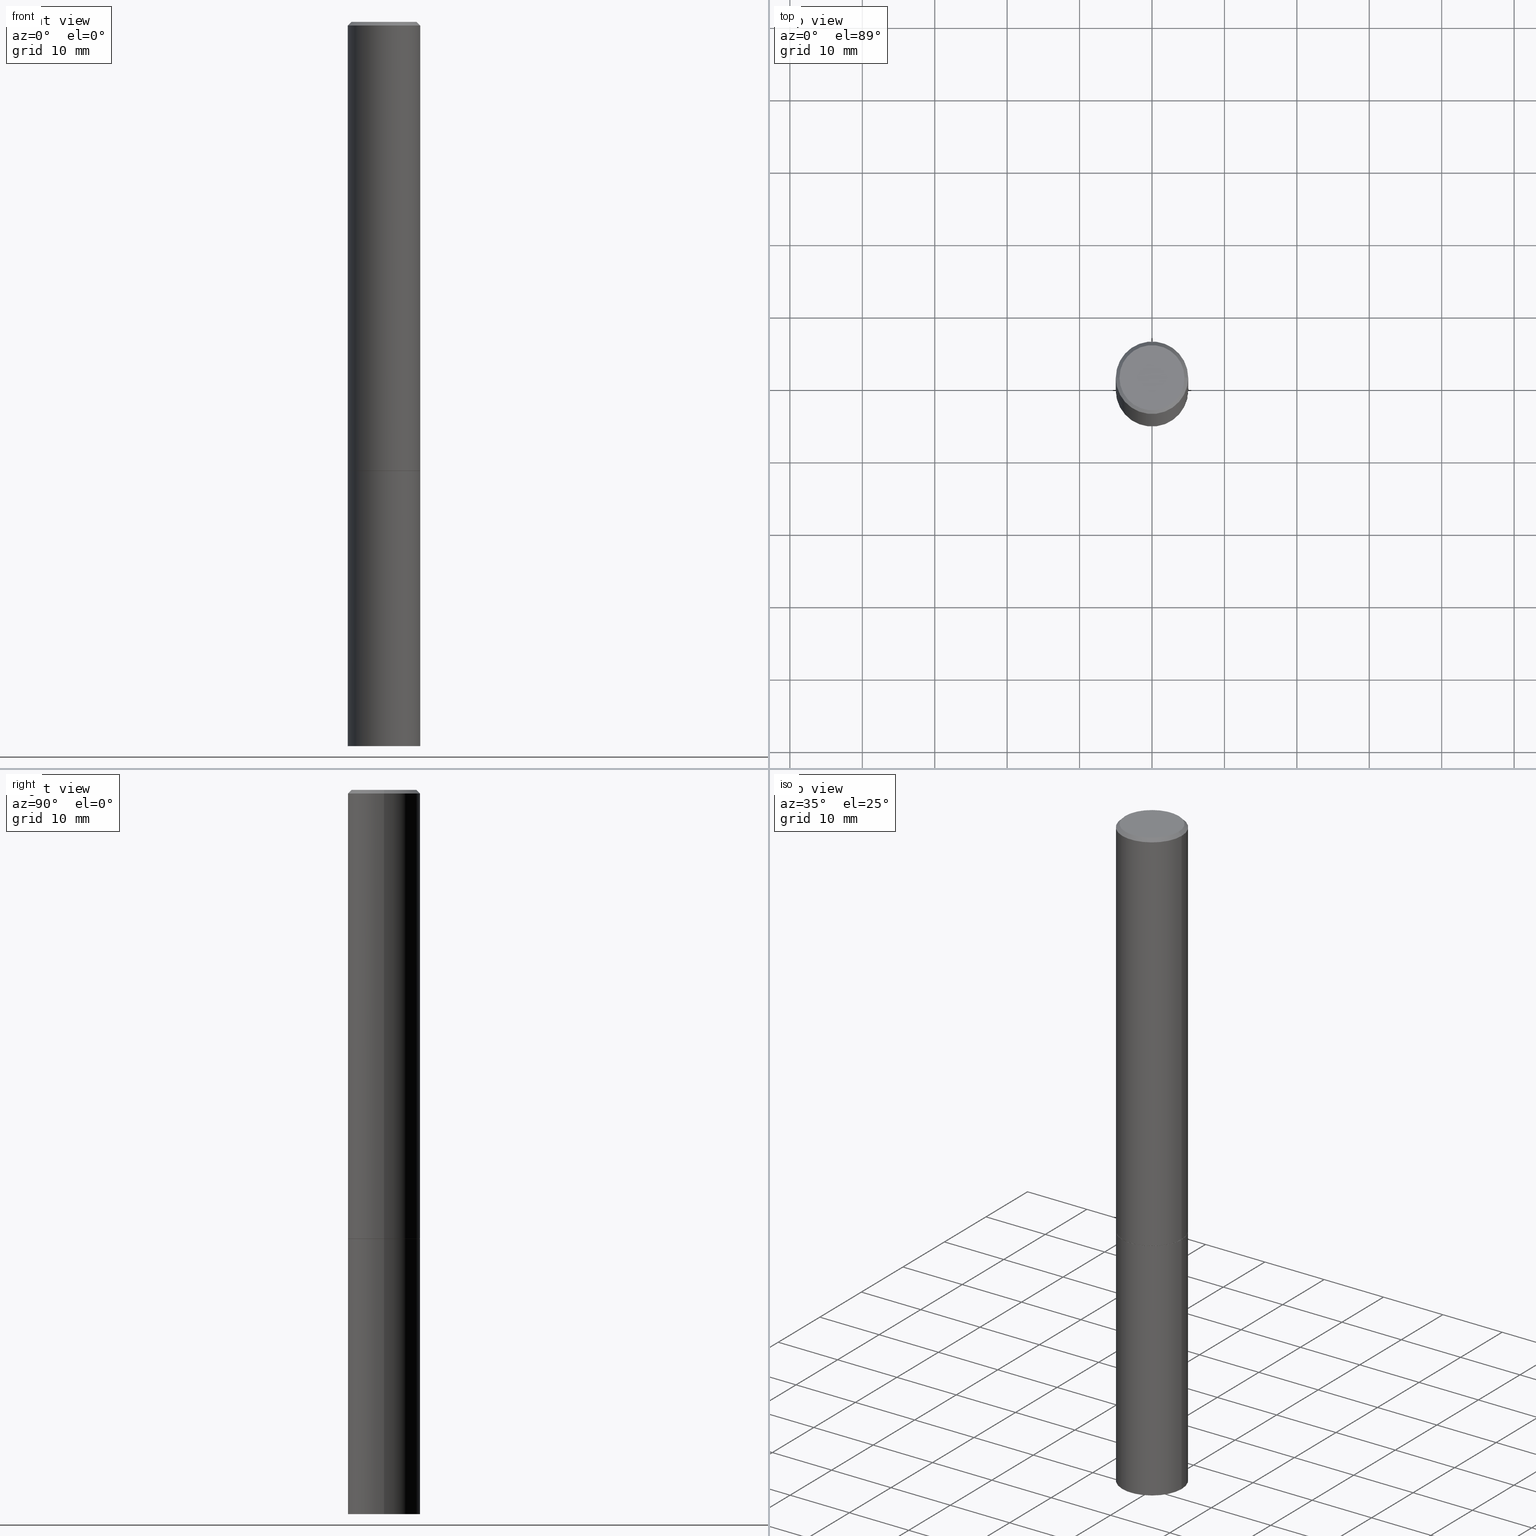
[diagram: canonical four-view strip — front | top / right | iso, engineering-drawing reading convention]
A machine part, canonical four-view strip (front | top / right | iso — engineering-drawing reading convention). The complete STEP part file that produces these views, byte-faithful:
ISO-10303-21;
HEADER;
FILE_DESCRIPTION (( 'STEP AP203' ),
    '1' );
FILE_NAME ('49432.STEP',
    '2024-02-28T20:42:53',
    ( '' ),
    ( '' ),
    'SwSTEP 2.0',
    'SolidWorks 2023',
    '' );
FILE_SCHEMA (( 'CONFIG_CONTROL_DESIGN' ));
ENDSEC;

DATA;
#1 = CIRCLE ( 'NONE', #333, 0.1968500000000000527 ) ;
#2 = CARTESIAN_POINT ( 'NONE',  ( 0.1768499999999996464, -1.316798864272039577E-15, 4.268512490109333727E-18 ) ) ;
#3 = ORIENTED_EDGE ( 'NONE', *, *, #309, .F. ) ;
#4 = PERSON_AND_ORGANIZATION_ROLE ( 'classification_officer' ) ;
#5 = AXIS2_PLACEMENT_3D ( 'NONE', #144, #346, #306 ) ;
#6 = LOCAL_TIME ( 15, 42, 53.00000000000000000, #35 ) ;
#7 = CARTESIAN_POINT ( 'NONE',  ( 0.000000000000000000, 0.000000000000000000, 0.000000000000000000 ) ) ;
#8 = EDGE_LOOP ( 'NONE', ( #321, #307, #114, #316 ) ) ;
#9 = CALENDAR_DATE ( 2024, 28, 2 ) ;
#10 = DIRECTION ( 'NONE',  ( 1.000000000000000000, -6.982962677686262766E-15, 0.000000000000000000 ) ) ;
#11 = EDGE_CURVE ( 'NONE', #57, #206, #218, .T. ) ;
#12 = CIRCLE ( 'NONE', #361, 0.1768499999999996464 ) ;
#13 = ORIENTED_EDGE ( 'NONE', *, *, #147, .F. ) ;
#14 = CC_DESIGN_PERSON_AND_ORGANIZATION_ASSIGNMENT ( #341, #111, ( #63 ) ) ;
#15 =( LENGTH_UNIT ( ) NAMED_UNIT ( * ) SI_UNIT ( $, .METRE. ) );
#16 = VERTEX_POINT ( 'NONE', #292 ) ;
#17 = PERSON_AND_ORGANIZATION ( #156, #137 ) ;
#18 = DIRECTION ( 'NONE',  ( -2.445468806185136597E-29, 3.491481338843145583E-15, 1.000000000000000000 ) ) ;
#19 = AXIS2_PLACEMENT_3D ( 'NONE', #27, #186, #252 ) ;
#20 = DIRECTION ( 'NONE',  ( 1.000000000000000000, -6.982962677686266711E-15, 0.000000000000000000 ) ) ;
#21 = ADVANCED_FACE ( 'NONE', ( #331 ), #241, .T. ) ;
#22 = CYLINDRICAL_SURFACE ( 'NONE', #123, 0.1968500000000000250 ) ;
#23 =( GEOMETRIC_REPRESENTATION_CONTEXT ( 3 ) GLOBAL_UNCERTAINTY_ASSIGNED_CONTEXT ( ( #352 ) ) GLOBAL_UNIT_ASSIGNED_CONTEXT ( ( #326, #68, #41 ) ) REPRESENTATION_CONTEXT ( 'NONE', 'WORKASPACE' ) );
#24 = CARTESIAN_POINT ( 'NONE',  ( -0.1968500000000000250, -9.735456040160091980E-15, -3.937000000000000277 ) ) ;
#25 = LINE ( 'NONE', #51, #287 ) ;
#26 = APPLICATION_CONTEXT ( 'configuration controlled 3d designs of mechanical parts and assemblies' ) ;
#27 = CARTESIAN_POINT ( 'NONE',  ( 5.966699340211114556E-29, -8.518865318643389958E-15, -2.439899999999999736 ) ) ;
#28 = ORIENTED_EDGE ( 'NONE', *, *, #366, .T. ) ;
#29 = AXIS2_PLACEMENT_3D ( 'NONE', #130, #363, #138 ) ;
#30 = CIRCLE ( 'NONE', #305, 0.1968499999999996364 ) ;
#31 = CARTESIAN_POINT ( 'NONE',  ( 5.969144809017300159E-29, -8.522356799982234543E-15, -2.440900000000000070 ) ) ;
#32 = PRODUCT_DEFINITION_SHAPE ( 'NONE', 'NONE',  #311 ) ;
#33 = PERSON_AND_ORGANIZATION_ROLE ( 'creator' ) ;
#34 = EDGE_CURVE ( 'NONE', #215, #131, #301, .T. ) ;
#35 = COORDINATED_UNIVERSAL_TIME_OFFSET ( 5, 0, .BEHIND. ) ;
#36 = AXIS2_PLACEMENT_3D ( 'NONE', #31, #170, #275 ) ;
#37 = EDGE_LOOP ( 'NONE', ( #176, #59, #13, #231 ) ) ;
#38 = DIRECTION ( 'NONE',  ( 1.000000000000000000, -6.982962677686262766E-15, 0.000000000000000000 ) ) ;
#39 = EDGE_CURVE ( 'NONE', #256, #57, #136, .T. ) ;
#40 = EDGE_LOOP ( 'NONE', ( #134, #347, #189, #364 ) ) ;
#41 =( NAMED_UNIT ( * ) SI_UNIT ( $, .STERADIAN. ) SOLID_ANGLE_UNIT ( ) );
#42 = ORIENTED_EDGE ( 'NONE', *, *, #269, .T. ) ;
#43 = MECHANICAL_CONTEXT ( 'NONE', #26, 'mechanical' ) ;
#44 = DIRECTION ( 'NONE',  ( -2.445468806185136877E-29, 3.491481338843145188E-15, 1.000000000000000000 ) ) ;
#45 = ADVANCED_FACE ( 'NONE', ( #328 ), #299, .T. ) ;
#46 = DIRECTION ( 'NONE',  ( -2.445468806185136597E-29, 3.491481338843145583E-15, 1.000000000000000000 ) ) ;
#47 = CARTESIAN_POINT ( 'NONE',  ( 0.000000000000000000, 0.000000000000000000, 0.000000000000000000 ) ) ;
#48 = ADVANCED_FACE ( 'NONE', ( #325 ), #160, .F. ) ;
#49 = AXIS2_PLACEMENT_3D ( 'NONE', #272, #234, #66 ) ;
#50 = DIRECTION ( 'NONE',  ( 1.000000000000000000, -6.982962677686266711E-15, 4.875932113059887537E-29 ) ) ;
#51 = CARTESIAN_POINT ( 'NONE',  ( -0.1968499999999996364, 1.304766576325675944E-15, -0.02000000000000002123 ) ) ;
#52 = CC_DESIGN_PERSON_AND_ORGANIZATION_ASSIGNMENT ( #17, #351, ( #110 ) ) ;
#53 = AXIS2_PLACEMENT_3D ( 'NONE', #332, #226, #74 ) ;
#54 = APPROVAL_PERSON_ORGANIZATION ( #342, #162, #314 ) ;
#55 = CALENDAR_DATE ( 2024, 28, 2 ) ;
#56 = FACE_OUTER_BOUND ( 'NONE', #120, .T. ) ;
#57 = VERTEX_POINT ( 'NONE', #24 ) ;
#58 = DIRECTION ( 'NONE',  ( 1.000000000000000000, -6.982962677686266711E-15, 4.876176775795935793E-29 ) ) ;
#59 = ORIENTED_EDGE ( 'NONE', *, *, #139, .T. ) ;
#60 = EDGE_LOOP ( 'NONE', ( #62, #350, #93, #86 ) ) ;
#61 = CIRCLE ( 'NONE', #167, 0.1768499999999996464 ) ;
#62 = ORIENTED_EDGE ( 'NONE', *, *, #139, .F. ) ;
#63 = PRODUCT_DEFINITION_FORMATION_WITH_SPECIFIED_SOURCE ( 'ANY', '', #110, .NOT_KNOWN. ) ;
#64 = EDGE_CURVE ( 'NONE', #256, #353, #69, .T. ) ;
#65 = COORDINATED_UNIVERSAL_TIME_OFFSET ( 5, 0, .BEHIND. ) ;
#66 = DIRECTION ( 'NONE',  ( -1.000000000000000000, 6.982962677686266711E-15, 0.000000000000000000 ) ) ;
#67 = ORIENTED_EDGE ( 'NONE', *, *, #147, .T. ) ;
#68 =( NAMED_UNIT ( * ) PLANE_ANGLE_UNIT ( ) SI_UNIT ( $, .RADIAN. ) );
#69 = LINE ( 'NONE', #270, #75 ) ;
#70 = CIRCLE ( 'NONE', #278, 0.1968499999999996364 ) ;
#71 = APPROVAL ( #151, 'UNSPECIFIED' ) ;
#72 = DIRECTION ( 'NONE',  ( 1.000000000000000000, -6.982962677686266711E-15, 4.876176775795935793E-29 ) ) ;
#73 = CARTESIAN_POINT ( 'NONE',  ( -0.1968499999999998307, 1.398703375343756013E-15, -9.682923725166775270E-30 ) ) ;
#74 = DIRECTION ( 'NONE',  ( -1.000000000000000000, 6.982962677686266711E-15, 0.000000000000000000 ) ) ;
#75 = VECTOR ( 'NONE', #295, 39.37007874015748143 ) ;
#76 = LOCAL_TIME ( 15, 42, 53.00000000000000000, #65 ) ;
#77 = CYLINDRICAL_SURFACE ( 'NONE', #181, 0.1968499999999998307 ) ;
#78 = DIRECTION ( 'NONE',  ( -1.000000000000000000, 6.982962677686265922E-15, -4.876176775795935793E-29 ) ) ;
#79 = DATE_TIME_ROLE ( 'classification_date' ) ;
#80 = ADVANCED_FACE ( 'NONE', ( #302 ), #100, .T. ) ;
#81 = COORDINATED_UNIVERSAL_TIME_OFFSET ( 5, 0, .BEHIND. ) ;
#82 = CC_DESIGN_APPROVAL ( #162, ( #273 ) ) ;
#83 = APPROVAL ( #280, 'UNSPECIFIED' ) ;
#84 = APPROVAL_DATE_TIME ( #345, #162 ) ;
#85 = CARTESIAN_POINT ( 'NONE',  ( 5.969144809017299038E-29, -8.522356799982232966E-15, -2.440900000000000070 ) ) ;
#86 = ORIENTED_EDGE ( 'NONE', *, *, #366, .F. ) ;
#87 = ADVANCED_FACE ( 'NONE', ( #240 ), #22, .T. ) ;
#88 = DIRECTION ( 'NONE',  ( -2.445468806185136597E-29, 3.491481338843145583E-15, 1.000000000000000000 ) ) ;
#89 = LOCAL_TIME ( 15, 42, 53.00000000000000000, #168 ) ;
#90 = EDGE_LOOP ( 'NONE', ( #289, #246, #349, #121 ) ) ;
#91 = MANIFOLD_SOLID_BREP ( 'Body-Move/Copy2[1]', #187 ) ;
#92 = APPLICATION_PROTOCOL_DEFINITION ( 'international standard', 'config_control_design', 1994, #116 ) ;
#93 = ORIENTED_EDGE ( 'NONE', *, *, #34, .T. ) ;
#94 = CARTESIAN_POINT ( 'NONE',  ( 1.374596203102637849E-15, 0.1968499999999862582, -3.937000000000000721 ) ) ;
#95 = DIRECTION ( 'NONE',  ( -2.445468806185136597E-29, 3.491481338843145583E-15, 1.000000000000000000 ) ) ;
#96 = EDGE_CURVE ( 'NONE', #16, #276, #317, .T. ) ;
#97 = CARTESIAN_POINT ( 'NONE',  ( 5.969144809017300159E-29, -8.522356799982234543E-15, -2.440900000000000070 ) ) ;
#98 = DIRECTION ( 'NONE',  ( 1.000000000000000000, -6.982962677686265922E-15, 4.876176775795935793E-29 ) ) ;
#99 = CARTESIAN_POINT ( 'NONE',  ( -0.1968500000000000250, 1.398703375343757393E-15, -9.682923725166783677E-30 ) ) ;
#100 = CONICAL_SURFACE ( 'NONE', #49, 0.1968499999999996364, 0.7853981633974473908 ) ;
#101 = DIRECTION ( 'NONE',  ( 2.438088387897960049E-29, -3.491481338843145188E-15, -1.000000000000000000 ) ) ;
#102 = ORIENTED_EDGE ( 'NONE', *, *, #229, .T. ) ;
#103 = CARTESIAN_POINT ( 'NONE',  ( 0.1958499999999999963, -9.889970040407088560E-15, -2.440900000000000070 ) ) ;
#104 = LINE ( 'NONE', #188, #128 ) ;
#105 = CC_DESIGN_PERSON_AND_ORGANIZATION_ASSIGNMENT ( #257, #169, ( #311 ) ) ;
#106 = AXIS2_PLACEMENT_3D ( 'NONE', #94, #101, #182 ) ;
#107 = CARTESIAN_POINT ( 'NONE',  ( 0.1968500000000000250, -9.896953003084774574E-15, -2.440900000000000070 ) ) ;
#108 = PERSON_AND_ORGANIZATION ( #156, #137 ) ;
#109 = APPROVAL_DATE_TIME ( #303, #71 ) ;
#110 = PRODUCT ( '49432', '49432', '', ( #43 ) ) ;
#111 = PERSON_AND_ORGANIZATION_ROLE ( 'design_supplier' ) ;
#112 = CARTESIAN_POINT ( 'NONE',  ( -0.1958499999999999963, -7.125460397647855362E-15, -2.440900000000000070 ) ) ;
#113 = DIMENSIONAL_EXPONENTS ( 1.000000000000000000, 0.000000000000000000, 0.000000000000000000, 0.000000000000000000, 0.000000000000000000, 0.000000000000000000, 0.000000000000000000 ) ;
#114 = ORIENTED_EDGE ( 'NONE', *, *, #159, .F. ) ;
#115 = LINE ( 'NONE', #103, #329 ) ;
#116 = APPLICATION_CONTEXT ( 'configuration controlled 3d designs of mechanical parts and assemblies' ) ;
#117 = ORIENTED_EDGE ( 'NONE', *, *, #129, .F. ) ;
#118 = AXIS2_PLACEMENT_3D ( 'NONE', #358, #158, #212 ) ;
#119 = EDGE_LOOP ( 'NONE', ( #199, #233, #67, #344 ) ) ;
#120 = EDGE_LOOP ( 'NONE', ( #174, #102 ) ) ;
#121 = ORIENTED_EDGE ( 'NONE', *, *, #64, .F. ) ;
#122 = DIRECTION ( 'NONE',  ( -2.445468806185136597E-29, 3.491481338843145583E-15, 1.000000000000000000 ) ) ;
#123 = AXIS2_PLACEMENT_3D ( 'NONE', #127, #298, #357 ) ;
#124 = CC_DESIGN_SECURITY_CLASSIFICATION ( #273, ( #63 ) ) ;
#125 = FACE_OUTER_BOUND ( 'NONE', #209, .T. ) ;
#126 = ORIENTED_EDGE ( 'NONE', *, *, #39, .F. ) ;
#127 = CARTESIAN_POINT ( 'NONE',  ( 0.000000000000000000, 0.000000000000000000, 0.000000000000000000 ) ) ;
#128 = VECTOR ( 'NONE', #133, 39.37007874015748143 ) ;
#129 = EDGE_CURVE ( 'NONE', #276, #205, #177, .T. ) ;
#130 = CARTESIAN_POINT ( 'NONE',  ( 5.969144809017299038E-29, -8.522356799982232966E-15, -2.440900000000000070 ) ) ;
#131 = VERTEX_POINT ( 'NONE', #330 ) ;
#132 = CARTESIAN_POINT ( 'NONE',  ( 0.1968500000000000250, -1.512055823412800660E-14, -3.937000000000000277 ) ) ;
#133 = DIRECTION ( 'NONE',  ( 0.7071067811865469066, -7.319954787623254468E-15, -0.7071067811865481278 ) ) ;
#134 = ORIENTED_EDGE ( 'NONE', *, *, #11, .F. ) ;
#135 = ADVANCED_FACE ( 'NONE', ( #152 ), #291, .T. ) ;
#136 = CIRCLE ( 'NONE', #118, 0.1968500000000000250 ) ;
#137 = ORGANIZATION ( 'UNSPECIFIED', 'UNSPECIFIED', '' ) ;
#138 = DIRECTION ( 'NONE',  ( 1.000000000000000000, -6.982962677686262766E-15, 0.000000000000000000 ) ) ;
#139 = EDGE_CURVE ( 'NONE', #205, #146, #266, .T. ) ;
#140 = DATE_AND_TIME ( #143, #297 ) ;
#141 = CLOSED_SHELL ( 'NONE', ( #204, #21, #80, #286, #173, #165, #264, #213 ) ) ;
#142 = APPROVAL_PERSON_ORGANIZATION ( #207, #71, #323 ) ;
#143 = CALENDAR_DATE ( 2024, 28, 2 ) ;
#144 = CARTESIAN_POINT ( 'NONE',  ( 9.627810689950883669E-29, -1.374596203102546341E-14, -3.937000000000000277 ) ) ;
#145 = EDGE_LOOP ( 'NONE', ( #126, #285 ) ) ;
#146 = VERTEX_POINT ( 'NONE', #184 ) ;
#147 = EDGE_CURVE ( 'NONE', #131, #146, #70, .T. ) ;
#148 = ORIENTED_EDGE ( 'NONE', *, *, #300, .T. ) ;
#149 = ORIENTED_EDGE ( 'NONE', *, *, #320, .T. ) ;
#150 = CARTESIAN_POINT ( 'NONE',  ( 4.890937612370278413E-31, -6.982962677686297772E-17, -0.02000000000000002123 ) ) ;
#151 = APPROVAL_STATUS ( 'not_yet_approved' ) ;
#152 = FACE_OUTER_BOUND ( 'NONE', #145, .T. ) ;
#153 = VECTOR ( 'NONE', #242, 39.37007874015748143 ) ;
#154 = DIRECTION ( 'NONE',  ( -2.445468806185136877E-29, 3.491481338843145188E-15, 1.000000000000000000 ) ) ;
#155 = DIRECTION ( 'NONE',  ( 1.000000000000000000, -6.982962677686262766E-15, 0.000000000000000000 ) ) ;
#156 = PERSON ( 'UNSPECIFIED', 'UNSPECIFIED', 'UNSPECIFIED', ('UNSPECIFIED'), ('UNSPECIFIED'), ('UNSPECIFIED') ) ;
#157 = DIRECTION ( 'NONE',  ( -2.445468806185136597E-29, 3.491481338843145583E-15, 1.000000000000000000 ) ) ;
#158 = DIRECTION ( 'NONE',  ( -2.445468806185136597E-29, 3.491481338843145583E-15, 1.000000000000000000 ) ) ;
#159 = EDGE_CURVE ( 'NONE', #215, #205, #1, .T. ) ;
#160 = PLANE ( 'NONE',  #221 ) ;
#161 = AXIS2_PLACEMENT_3D ( 'NONE', #47, #157, #98 ) ;
#162 = APPROVAL ( #197, 'UNSPECIFIED' ) ;
#163 = CARTESIAN_POINT ( 'NONE',  ( 5.969144809017300159E-29, -8.522356799982234543E-15, -2.440900000000000070 ) ) ;
#164 = CARTESIAN_POINT ( 'NONE',  ( 5.969144809017300159E-29, -8.522356799982234543E-15, -2.440900000000000070 ) ) ;
#165 = ADVANCED_FACE ( 'NONE', ( #125 ), #201, .T. ) ;
#166 = DIRECTION ( 'NONE',  ( -2.445468806185136597E-29, 3.491481338843145583E-15, 1.000000000000000000 ) ) ;
#167 = AXIS2_PLACEMENT_3D ( 'NONE', #220, #334, #50 ) ;
#168 = COORDINATED_UNIVERSAL_TIME_OFFSET ( 5, 0, .BEHIND. ) ;
#169 = PERSON_AND_ORGANIZATION_ROLE ( 'creator' ) ;
#170 = DIRECTION ( 'NONE',  ( -2.438088387897960049E-29, 3.491481338843145188E-15, 1.000000000000000000 ) ) ;
#171 = AXIS2_PLACEMENT_3D ( 'NONE', #244, #18, #359 ) ;
#172 = DIRECTION ( 'NONE',  ( 1.000000000000000000, -6.982962677686262766E-15, 0.000000000000000000 ) ) ;
#173 = ADVANCED_FACE ( 'NONE', ( #308 ), #77, .T. ) ;
#174 = ORIENTED_EDGE ( 'NONE', *, *, #260, .T. ) ;
#175 = AXIS2_PLACEMENT_3D ( 'NONE', #85, #343, #10 ) ;
#176 = ORIENTED_EDGE ( 'NONE', *, *, #159, .T. ) ;
#177 = LINE ( 'NONE', #362, #153 ) ;
#178 = DIRECTION ( 'NONE',  ( -2.445468806185136877E-29, 3.491481338843145188E-15, 1.000000000000000000 ) ) ;
#179 = DIRECTION ( 'NONE',  ( 0.000000000000000000, 0.000000000000000000, 1.000000000000000000 ) ) ;
#180 = CARTESIAN_POINT ( 'NONE',  ( 0.1968499999999998307, -1.374596203102540425E-15, 9.598753983154291049E-30 ) ) ;
#181 = AXIS2_PLACEMENT_3D ( 'NONE', #7, #166, #58 ) ;
#182 = DIRECTION ( 'NONE',  ( -1.000000000000000000, 6.982962677686265922E-15, -4.876176775795935793E-29 ) ) ;
#183 = DIRECTION ( 'NONE',  ( 2.438088387897960049E-29, -3.491481338843145188E-15, -1.000000000000000000 ) ) ;
#184 = CARTESIAN_POINT ( 'NONE',  ( -0.1968499999999996364, 1.304766576325675944E-15, -0.02000000000000002123 ) ) ;
#185 = PRODUCT_RELATED_PRODUCT_CATEGORY ( 'detail', '', ( #110 ) ) ;
#186 = DIRECTION ( 'NONE',  ( -2.445468806185136597E-29, 3.491481338843145583E-15, 1.000000000000000000 ) ) ;
#187 = CLOSED_SHELL ( 'NONE', ( #45, #135, #48, #87 ) ) ;
#188 = CARTESIAN_POINT ( 'NONE',  ( 0.1968499999999996364, -1.420318657638186558E-15, -0.02000000000000002123 ) ) ;
#189 = ORIENTED_EDGE ( 'NONE', *, *, #64, .T. ) ;
#190 = CARTESIAN_POINT ( 'NONE',  ( -1.043851414335219820E-46, 1.490343170380447200E-32, 4.268512490100411279E-18 ) ) ;
#191 = SHAPE_DEFINITION_REPRESENTATION ( #32, #195 ) ;
#192 = CC_DESIGN_DATE_AND_TIME_ASSIGNMENT ( #279, #79, ( #273 ) ) ;
#193 = PERSON_AND_ORGANIZATION ( #156, #137 ) ;
#194 = CIRCLE ( 'NONE', #19, 0.1968500000000000527 ) ;
#195 = ADVANCED_BREP_SHAPE_REPRESENTATION ( '49432', ( #91, #219, #340 ), #23 ) ;
#196 = EDGE_CURVE ( 'NONE', #206, #353, #312, .T. ) ;
#197 = APPROVAL_STATUS ( 'not_yet_approved' ) ;
#198 = CARTESIAN_POINT ( 'NONE',  ( 4.890937612370278413E-31, -6.982962677686297772E-17, -0.02000000000000002123 ) ) ;
#199 = ORIENTED_EDGE ( 'NONE', *, *, #229, .F. ) ;
#200 = CARTESIAN_POINT ( 'NONE',  ( -0.1968500000000000527, -2.895644097366364896E-15, -2.439899999999999736 ) ) ;
#201 = CONICAL_SURFACE ( 'NONE', #354, 0.1958499999999999963, 0.7853981633972946241 ) ;
#202 = EDGE_CURVE ( 'NONE', #16, #215, #115, .T. ) ;
#203 = VERTEX_POINT ( 'NONE', #222 ) ;
#204 = ADVANCED_FACE ( 'NONE', ( #284 ), #250, .T. ) ;
#205 = VERTEX_POINT ( 'NONE', #200 ) ;
#206 = VERTEX_POINT ( 'NONE', #304 ) ;
#207 = PERSON_AND_ORGANIZATION ( #156, #137 ) ;
#208 = APPROVAL_PERSON_ORGANIZATION ( #193, #83, #337 ) ;
#209 = EDGE_LOOP ( 'NONE', ( #117, #42, #239, #251 ) ) ;
#210 = LENGTH_MEASURE_WITH_UNIT ( LENGTH_MEASURE( 0.02539999999999999897 ), #15 );
#211 = CARTESIAN_POINT ( 'NONE',  ( 5.966699340211114556E-29, -8.518865318643389958E-15, -2.439899999999999736 ) ) ;
#212 = DIRECTION ( 'NONE',  ( 1.000000000000000000, -6.982962677686267499E-15, 0.000000000000000000 ) ) ;
#213 = ADVANCED_FACE ( 'NONE', ( #56 ), #277, .F. ) ;
#214 = CIRCLE ( 'NONE', #243, 0.1958499999999999963 ) ;
#215 = VERTEX_POINT ( 'NONE', #248 ) ;
#216 = ORIENTED_EDGE ( 'NONE', *, *, #96, .F. ) ;
#217 = DIRECTION ( 'NONE',  ( 1.000000000000000000, -6.982962677686266711E-15, 4.875932113059887537E-29 ) ) ;
#218 = LINE ( 'NONE', #99, #281 ) ;
#219 = MANIFOLD_SOLID_BREP ( 'Body-Move/Copy2[2]', #141 ) ;
#220 = CARTESIAN_POINT ( 'NONE',  ( -1.043851414335219820E-46, 1.490343170380447200E-32, 4.268512490100411279E-18 ) ) ;
#221 = AXIS2_PLACEMENT_3D ( 'NONE', #355, #183, #327 ) ;
#222 = CARTESIAN_POINT ( 'NONE',  ( -0.1768499999999996464, 1.269851762937245083E-15, 4.268512490091652920E-18 ) ) ;
#223 = COORDINATED_UNIVERSAL_TIME_OFFSET ( 5, 0, .BEHIND. ) ;
#224 = PERSON_AND_ORGANIZATION ( #156, #137 ) ;
#225 = CIRCLE ( 'NONE', #5, 0.1968500000000000250 ) ;
#226 = DIRECTION ( 'NONE',  ( 2.445468806185136597E-29, -3.491481338843145583E-15, -1.000000000000000000 ) ) ;
#227 = ORIENTED_EDGE ( 'NONE', *, *, #260, .F. ) ;
#228 = DATE_TIME_ROLE ( 'creation_date' ) ;
#229 = EDGE_CURVE ( 'NONE', #319, #203, #61, .T. ) ;
#230 = FACE_OUTER_BOUND ( 'NONE', #360, .T. ) ;
#231 = ORIENTED_EDGE ( 'NONE', *, *, #34, .F. ) ;
#232 = AXIS2_PLACEMENT_3D ( 'NONE', #245, #336, #78 ) ;
#233 = ORIENTED_EDGE ( 'NONE', *, *, #309, .T. ) ;
#234 = DIRECTION ( 'NONE',  ( 2.445468806185136597E-29, -3.491481338843145583E-15, -1.000000000000000000 ) ) ;
#235 = CONICAL_SURFACE ( 'NONE', #53, 0.1968499999999996364, 0.7853981633974473908 ) ;
#236 = CC_DESIGN_APPROVAL ( #71, ( #311 ) ) ;
#237 = DIRECTION ( 'NONE',  ( 1.000000000000000000, -6.982962677686266711E-15, 0.000000000000000000 ) ) ;
#238 = CC_DESIGN_DATE_AND_TIME_ASSIGNMENT ( #140, #228, ( #311 ) ) ;
#239 = ORIENTED_EDGE ( 'NONE', *, *, #202, .T. ) ;
#240 = FACE_OUTER_BOUND ( 'NONE', #40, .T. ) ;
#241 = CYLINDRICAL_SURFACE ( 'NONE', #255, 0.1968499999999998307 ) ;
#242 = DIRECTION ( 'NONE',  ( -0.7071067811864388819, 7.493145998869961307E-15, 0.7071067811866561525 ) ) ;
#243 = AXIS2_PLACEMENT_3D ( 'NONE', #163, #283, #38 ) ;
#244 = CARTESIAN_POINT ( 'NONE',  ( 5.969144809017300159E-29, -8.522356799982234543E-15, -2.440900000000000070 ) ) ;
#245 = CARTESIAN_POINT ( 'NONE',  ( 1.234936949548813631E-15, 0.1768499999999996464, -6.153342185293588703E-16 ) ) ;
#246 = ORIENTED_EDGE ( 'NONE', *, *, #11, .T. ) ;
#247 = DIRECTION ( 'NONE',  ( -0.7071067811865469066, 2.468850131082250355E-15, -0.7071067811865481278 ) ) ;
#248 = CARTESIAN_POINT ( 'NONE',  ( 0.1968500000000000527, -9.893461521745931567E-15, -2.439899999999999736 ) ) ;
#249 = AXIS2_PLACEMENT_3D ( 'NONE', #164, #274, #172 ) ;
#250 = CONICAL_SURFACE ( 'NONE', #249, 0.1958499999999999963, 0.7853981633972946241 ) ;
#251 = ORIENTED_EDGE ( 'NONE', *, *, #294, .F. ) ;
#252 = DIRECTION ( 'NONE',  ( 1.000000000000000000, -6.982962677686266711E-15, 0.000000000000000000 ) ) ;
#253 = SECURITY_CLASSIFICATION_LEVEL ( 'unclassified' ) ;
#254 = APPROVAL_DATE_TIME ( #313, #83 ) ;
#255 = AXIS2_PLACEMENT_3D ( 'NONE', #356, #95, #72 ) ;
#256 = VERTEX_POINT ( 'NONE', #132 ) ;
#257 = PERSON_AND_ORGANIZATION ( #156, #137 ) ;
#258 = DIRECTION ( 'NONE',  ( -2.445468806185136597E-29, 3.491481338843145583E-15, 1.000000000000000000 ) ) ;
#259 = EDGE_LOOP ( 'NONE', ( #3, #227, #148, #28 ) ) ;
#260 = EDGE_CURVE ( 'NONE', #203, #319, #12, .T. ) ;
#261 = EDGE_LOOP ( 'NONE', ( #149, #265 ) ) ;
#262 = DIRECTION ( 'NONE',  ( 1.000000000000000000, -6.982962677686266711E-15, 0.000000000000000000 ) ) ;
#263 = ORIENTED_EDGE ( 'NONE', *, *, #269, .F. ) ;
#264 = ADVANCED_FACE ( 'NONE', ( #230 ), #318, .F. ) ;
#265 = ORIENTED_EDGE ( 'NONE', *, *, #196, .T. ) ;
#266 = LINE ( 'NONE', #73, #271 ) ;
#267 = CALENDAR_DATE ( 2024, 28, 2 ) ;
#268 = DIRECTION ( 'NONE',  ( -2.445468806185136597E-29, 3.491481338843145583E-15, 1.000000000000000000 ) ) ;
#269 = EDGE_CURVE ( 'NONE', #276, #16, #214, .T. ) ;
#270 = CARTESIAN_POINT ( 'NONE',  ( 0.1968500000000000250, -1.374596203102541608E-15, 9.598753983154300858E-30 ) ) ;
#271 = VECTOR ( 'NONE', #44, 39.37007874015748143 ) ;
#272 = CARTESIAN_POINT ( 'NONE',  ( 4.890937612370278413E-31, -6.982962677686297772E-17, -0.02000000000000002123 ) ) ;
#273 = SECURITY_CLASSIFICATION ( '', '', #253 ) ;
#274 = DIRECTION ( 'NONE',  ( -2.445468806185136597E-29, 3.491481338843145583E-15, 1.000000000000000000 ) ) ;
#275 = DIRECTION ( 'NONE',  ( 1.000000000000000000, -6.982962677686265922E-15, 4.876176775795935793E-29 ) ) ;
#276 = VERTEX_POINT ( 'NONE', #112 ) ;
#277 = PLANE ( 'NONE',  #232 ) ;
#278 = AXIS2_PLACEMENT_3D ( 'NONE', #150, #122, #237 ) ;
#279 = DATE_AND_TIME ( #338, #89 ) ;
#280 = APPROVAL_STATUS ( 'not_yet_approved' ) ;
#281 = VECTOR ( 'NONE', #178, 39.37007874015748143 ) ;
#282 = CC_DESIGN_APPROVAL ( #83, ( #63 ) ) ;
#283 = DIRECTION ( 'NONE',  ( -2.445468806185136597E-29, 3.491481338843145583E-15, 1.000000000000000000 ) ) ;
#284 = FACE_OUTER_BOUND ( 'NONE', #8, .T. ) ;
#285 = ORIENTED_EDGE ( 'NONE', *, *, #335, .F. ) ;
#286 = ADVANCED_FACE ( 'NONE', ( #365 ), #235, .T. ) ;
#287 = VECTOR ( 'NONE', #247, 39.37007874015748143 ) ;
#288 = APPLICATION_PROTOCOL_DEFINITION ( 'international standard', 'config_control_design', 1994, #26 ) ;
#289 = ORIENTED_EDGE ( 'NONE', *, *, #39, .T. ) ;
#290 = CC_DESIGN_PERSON_AND_ORGANIZATION_ASSIGNMENT ( #108, #4, ( #273 ) ) ;
#291 = PLANE ( 'NONE',  #106 ) ;
#292 = CARTESIAN_POINT ( 'NONE',  ( 0.1958499999999999963, -9.889970040407088560E-15, -2.440900000000000070 ) ) ;
#293 = DIRECTION ( 'NONE',  ( 1.000000000000000000, 0.000000000000000000, 0.000000000000000000 ) ) ;
#294 = EDGE_CURVE ( 'NONE', #205, #215, #194, .T. ) ;
#295 = DIRECTION ( 'NONE',  ( -2.445468806185136877E-29, 3.491481338843145188E-15, 1.000000000000000000 ) ) ;
#296 = VECTOR ( 'NONE', #154, 39.37007874015748143 ) ;
#297 = LOCAL_TIME ( 15, 42, 53.00000000000000000, #223 ) ;
#298 = DIRECTION ( 'NONE',  ( -2.445468806185136597E-29, 3.491481338843145583E-15, 1.000000000000000000 ) ) ;
#299 = CYLINDRICAL_SURFACE ( 'NONE', #161, 0.1968500000000000250 ) ;
#300 = EDGE_CURVE ( 'NONE', #203, #146, #25, .T. ) ;
#301 = LINE ( 'NONE', #180, #296 ) ;
#302 = FACE_OUTER_BOUND ( 'NONE', #119, .T. ) ;
#303 = DATE_AND_TIME ( #267, #76 ) ;
#304 = CARTESIAN_POINT ( 'NONE',  ( -0.1968500000000000250, -9.735456040160091980E-15, -2.440900000000000070 ) ) ;
#305 = AXIS2_PLACEMENT_3D ( 'NONE', #198, #88, #262 ) ;
#306 = DIRECTION ( 'NONE',  ( 1.000000000000000000, -6.982962677686267499E-15, 0.000000000000000000 ) ) ;
#307 = ORIENTED_EDGE ( 'NONE', *, *, #129, .T. ) ;
#308 = FACE_OUTER_BOUND ( 'NONE', #60, .T. ) ;
#309 = EDGE_CURVE ( 'NONE', #319, #131, #104, .T. ) ;
#310 = DESIGN_CONTEXT ( 'detailed design', #116, 'design' ) ;
#311 = PRODUCT_DEFINITION ( 'UNKNOWN', '', #63, #310 ) ;
#312 = CIRCLE ( 'NONE', #29, 0.1968500000000000250 ) ;
#313 = DATE_AND_TIME ( #9, #6 ) ;
#314 = APPROVAL_ROLE ( '' ) ;
#315 = DIRECTION ( 'NONE',  ( 0.7071067811864388819, -2.468850131081119129E-15, 0.7071067811866561525 ) ) ;
#316 = ORIENTED_EDGE ( 'NONE', *, *, #202, .F. ) ;
#317 = CIRCLE ( 'NONE', #171, 0.1958499999999999963 ) ;
#318 = PLANE ( 'NONE',  #36 ) ;
#319 = VERTEX_POINT ( 'NONE', #2 ) ;
#320 = EDGE_CURVE ( 'NONE', #353, #206, #339, .T. ) ;
#321 = ORIENTED_EDGE ( 'NONE', *, *, #96, .T. ) ;
#322 = CC_DESIGN_PERSON_AND_ORGANIZATION_ASSIGNMENT ( #224, #33, ( #63 ) ) ;
#323 = APPROVAL_ROLE ( '' ) ;
#324 = CARTESIAN_POINT ( 'NONE',  ( 0.000000000000000000, 0.000000000000000000, 0.000000000000000000 ) ) ;
#325 = FACE_OUTER_BOUND ( 'NONE', #261, .T. ) ;
#326 =( CONVERSION_BASED_UNIT ( 'INCH', #210 ) LENGTH_UNIT ( ) NAMED_UNIT ( #113 ) );
#327 = DIRECTION ( 'NONE',  ( -1.000000000000000000, 6.982962677686265922E-15, -4.876176775795935793E-29 ) ) ;
#328 = FACE_OUTER_BOUND ( 'NONE', #90, .T. ) ;
#329 = VECTOR ( 'NONE', #315, 39.37007874015748143 ) ;
#330 = CARTESIAN_POINT ( 'NONE',  ( 0.1968499999999996364, -1.420318657638186558E-15, -0.02000000000000002123 ) ) ;
#331 = FACE_OUTER_BOUND ( 'NONE', #37, .T. ) ;
#332 = CARTESIAN_POINT ( 'NONE',  ( 4.890937612370278413E-31, -6.982962677686297772E-17, -0.02000000000000002123 ) ) ;
#333 = AXIS2_PLACEMENT_3D ( 'NONE', #211, #268, #20 ) ;
#334 = DIRECTION ( 'NONE',  ( -2.445468806185136597E-29, 3.491481338843145583E-15, 1.000000000000000000 ) ) ;
#335 = EDGE_CURVE ( 'NONE', #57, #256, #225, .T. ) ;
#336 = DIRECTION ( 'NONE',  ( 2.438088387897960049E-29, -3.491481338843145188E-15, -1.000000000000000000 ) ) ;
#337 = APPROVAL_ROLE ( '' ) ;
#338 = CALENDAR_DATE ( 2024, 28, 2 ) ;
#339 = CIRCLE ( 'NONE', #175, 0.1968500000000000250 ) ;
#340 = AXIS2_PLACEMENT_3D ( 'NONE', #324, #179, #293 ) ;
#341 = PERSON_AND_ORGANIZATION ( #156, #137 ) ;
#342 = PERSON_AND_ORGANIZATION ( #156, #137 ) ;
#343 = DIRECTION ( 'NONE',  ( -2.445468806185136597E-29, 3.491481338843145583E-15, 1.000000000000000000 ) ) ;
#344 = ORIENTED_EDGE ( 'NONE', *, *, #300, .F. ) ;
#345 = DATE_AND_TIME ( #55, #348 ) ;
#346 = DIRECTION ( 'NONE',  ( -2.445468806185136597E-29, 3.491481338843145583E-15, 1.000000000000000000 ) ) ;
#347 = ORIENTED_EDGE ( 'NONE', *, *, #335, .T. ) ;
#348 = LOCAL_TIME ( 15, 42, 53.00000000000000000, #81 ) ;
#349 = ORIENTED_EDGE ( 'NONE', *, *, #320, .F. ) ;
#350 = ORIENTED_EDGE ( 'NONE', *, *, #294, .T. ) ;
#351 = PERSON_AND_ORGANIZATION_ROLE ( 'design_owner' ) ;
#352 = UNCERTAINTY_MEASURE_WITH_UNIT (LENGTH_MEASURE( 1.000000000000000082E-05 ), #326, 'distance_accuracy_value', 'NONE');
#353 = VERTEX_POINT ( 'NONE', #107 ) ;
#354 = AXIS2_PLACEMENT_3D ( 'NONE', #97, #46, #155 ) ;
#355 = CARTESIAN_POINT ( 'NONE',  ( 1.374596203102601167E-15, 0.1968499999999914762, -2.440900000000000514 ) ) ;
#356 = CARTESIAN_POINT ( 'NONE',  ( 0.000000000000000000, 0.000000000000000000, 0.000000000000000000 ) ) ;
#357 = DIRECTION ( 'NONE',  ( 1.000000000000000000, -6.982962677686265922E-15, 4.876176775795935793E-29 ) ) ;
#358 = CARTESIAN_POINT ( 'NONE',  ( 9.627810689950883669E-29, -1.374596203102546341E-14, -3.937000000000000277 ) ) ;
#359 = DIRECTION ( 'NONE',  ( 1.000000000000000000, -6.982962677686262766E-15, 0.000000000000000000 ) ) ;
#360 = EDGE_LOOP ( 'NONE', ( #216, #263 ) ) ;
#361 = AXIS2_PLACEMENT_3D ( 'NONE', #190, #258, #217 ) ;
#362 = CARTESIAN_POINT ( 'NONE',  ( -0.1958499999999999963, -7.130758851996077764E-15, -2.440900000000000070 ) ) ;
#363 = DIRECTION ( 'NONE',  ( -2.445468806185136597E-29, 3.491481338843145583E-15, 1.000000000000000000 ) ) ;
#364 = ORIENTED_EDGE ( 'NONE', *, *, #196, .F. ) ;
#365 = FACE_OUTER_BOUND ( 'NONE', #259, .T. ) ;
#366 = EDGE_CURVE ( 'NONE', #146, #131, #30, .T. ) ;
ENDSEC;
END-ISO-10303-21;
